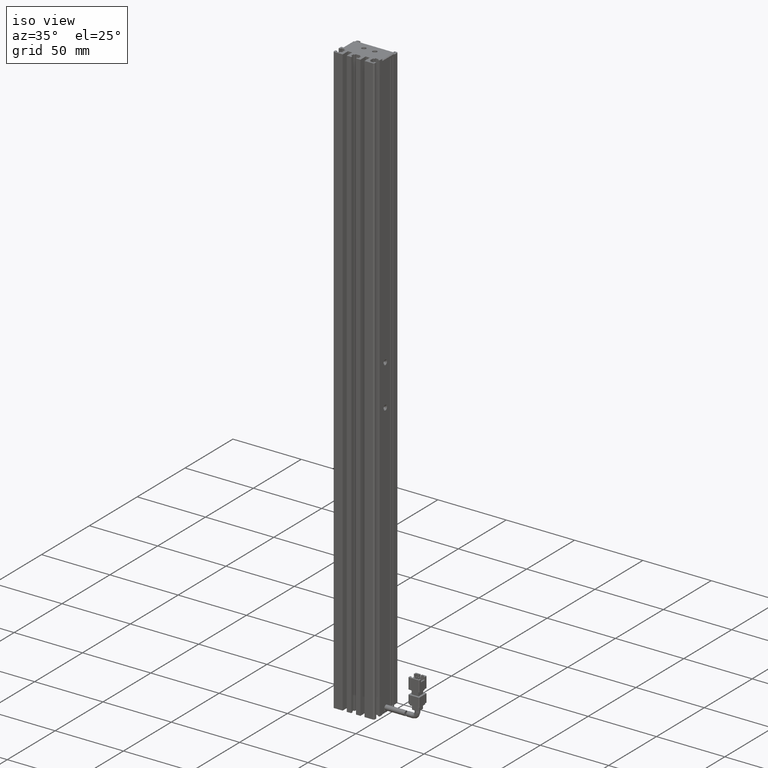
[diagram: clean part render]
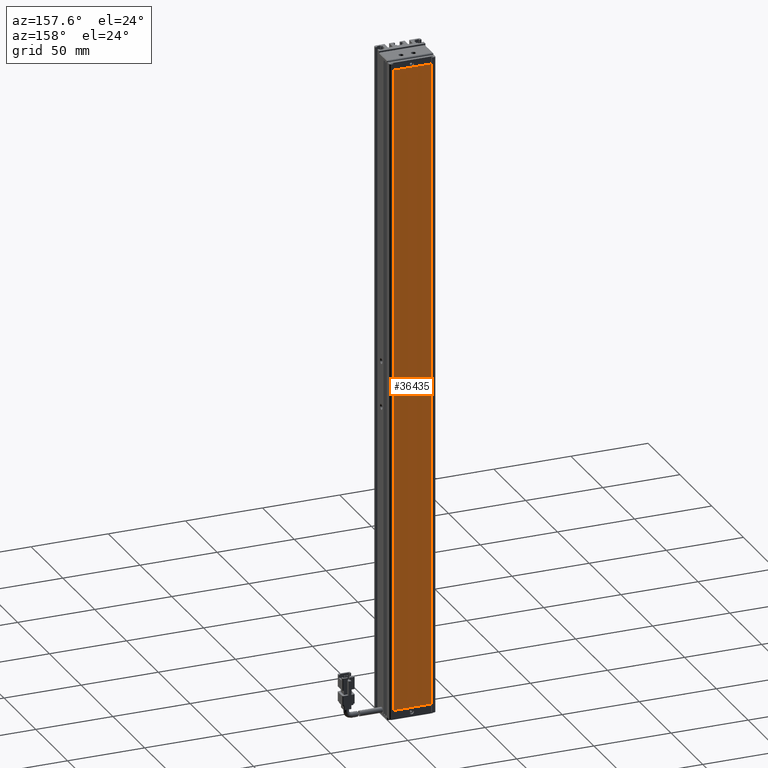
[diagram: tour spotlight — one face highlighted and labeled with its STEP entity id]
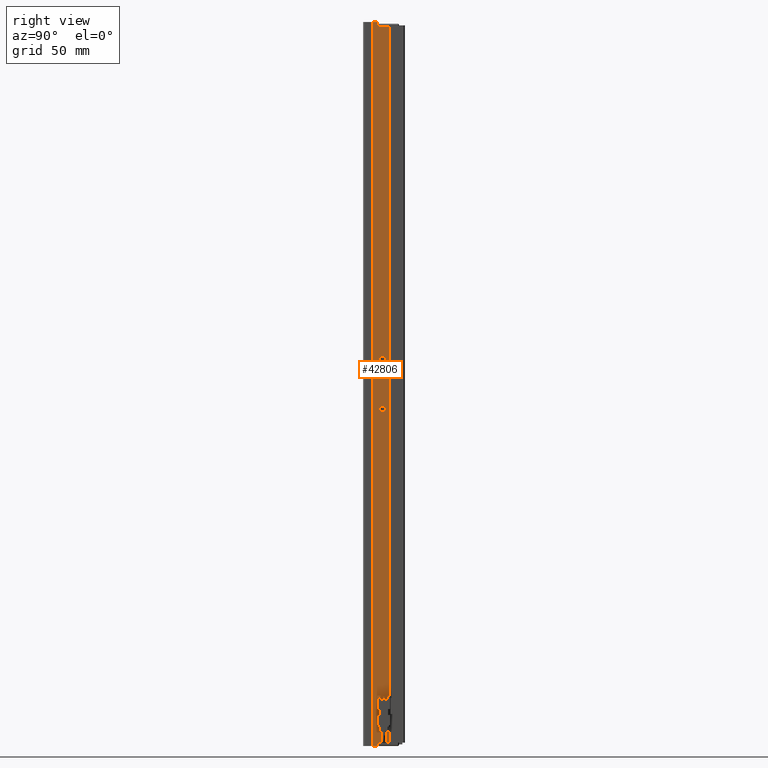
[diagram: tour spotlight — one face highlighted and labeled with its STEP entity id]
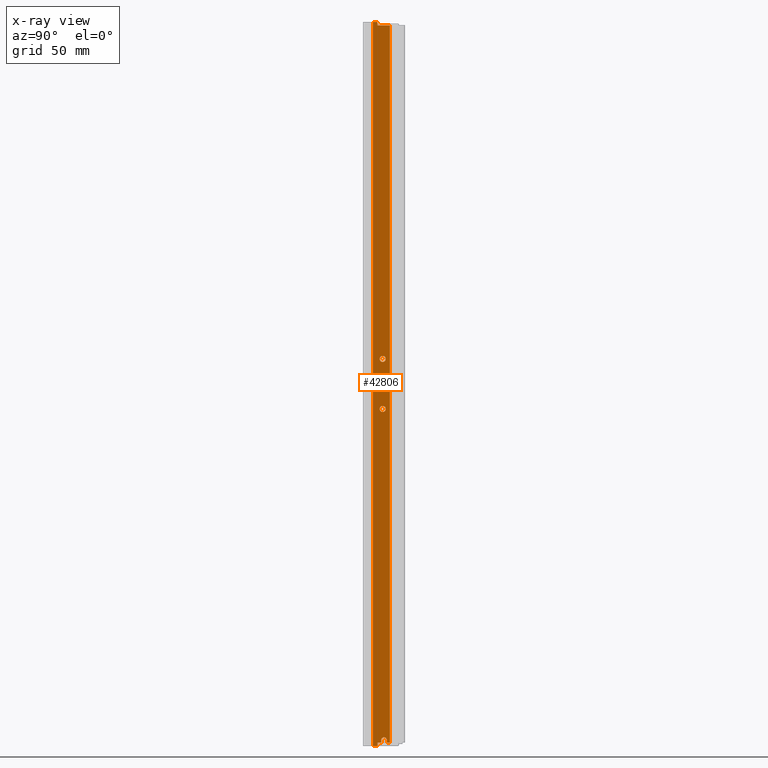
[diagram: x-ray of the same camera — body ghosted, this tour face saturated]
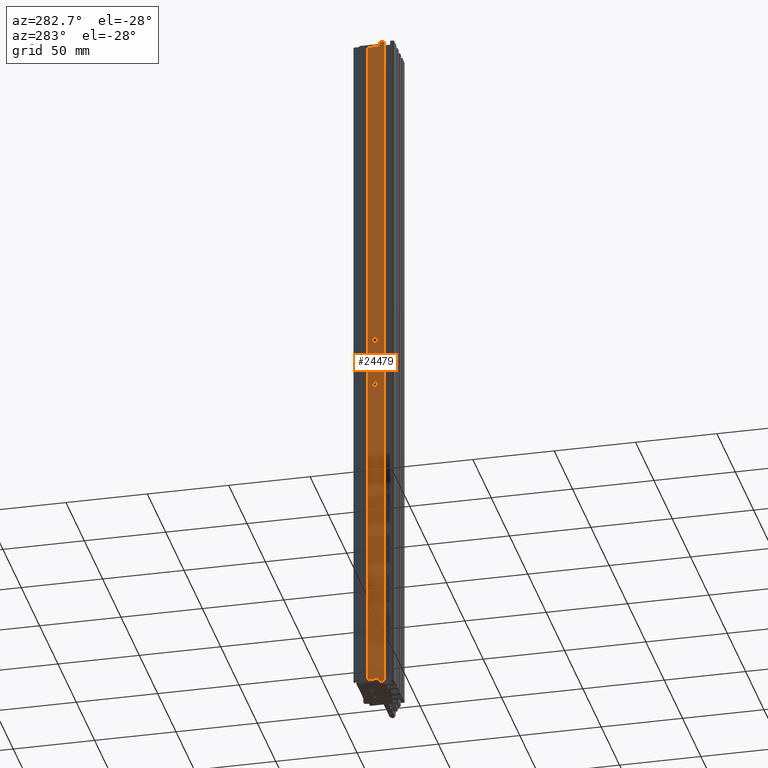
[diagram: tour spotlight — one face highlighted and labeled with its STEP entity id]
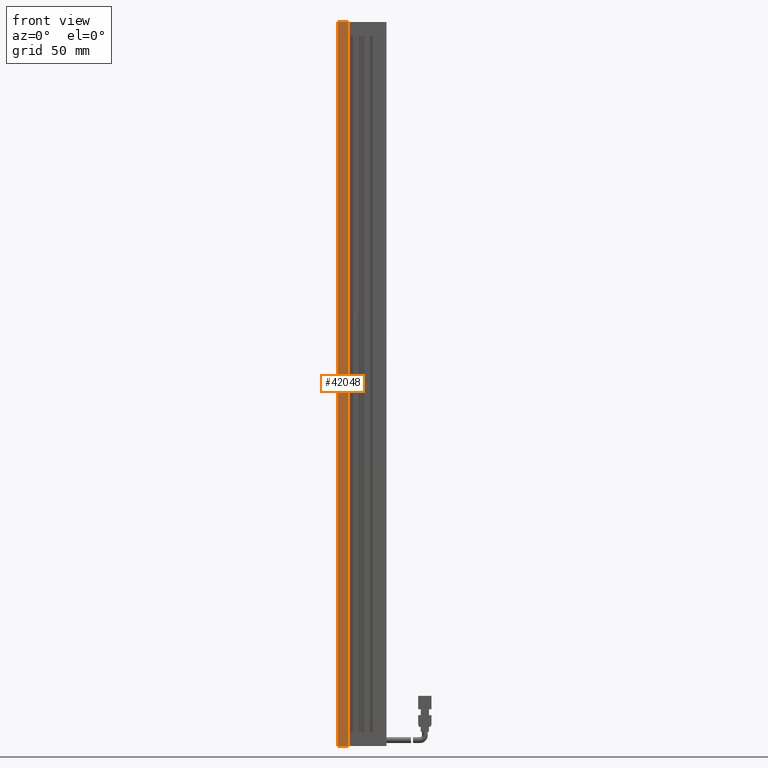
[diagram: tour spotlight — one face highlighted and labeled with its STEP entity id]
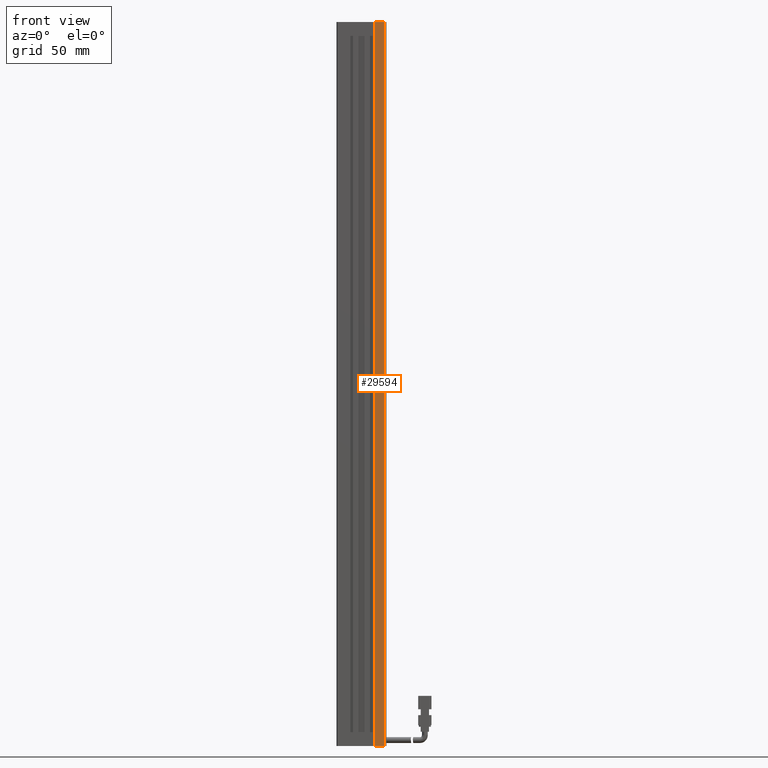
[diagram: tour spotlight — one face highlighted and labeled with its STEP entity id]
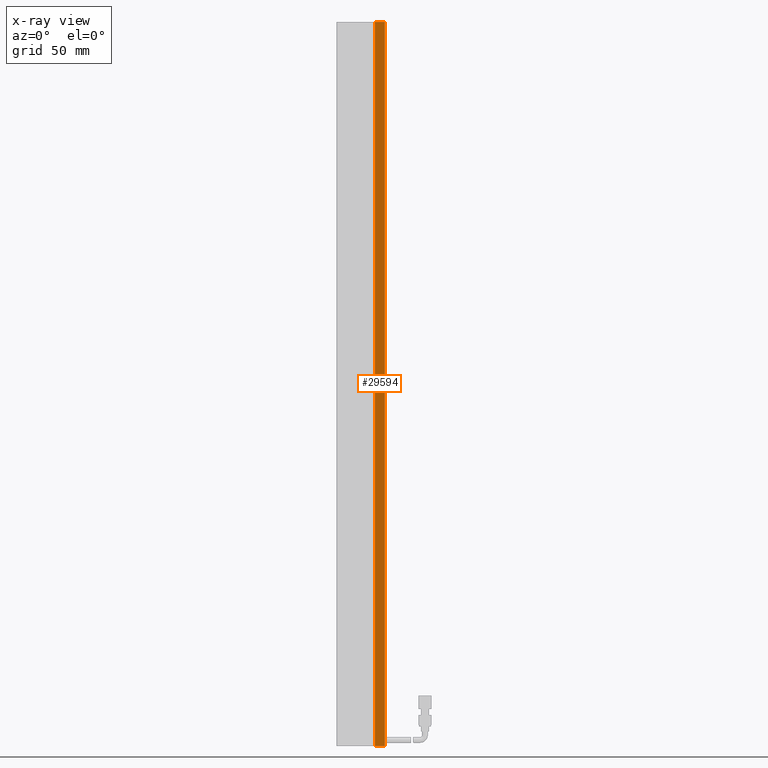
[diagram: x-ray of the same camera — body ghosted, this tour face saturated]
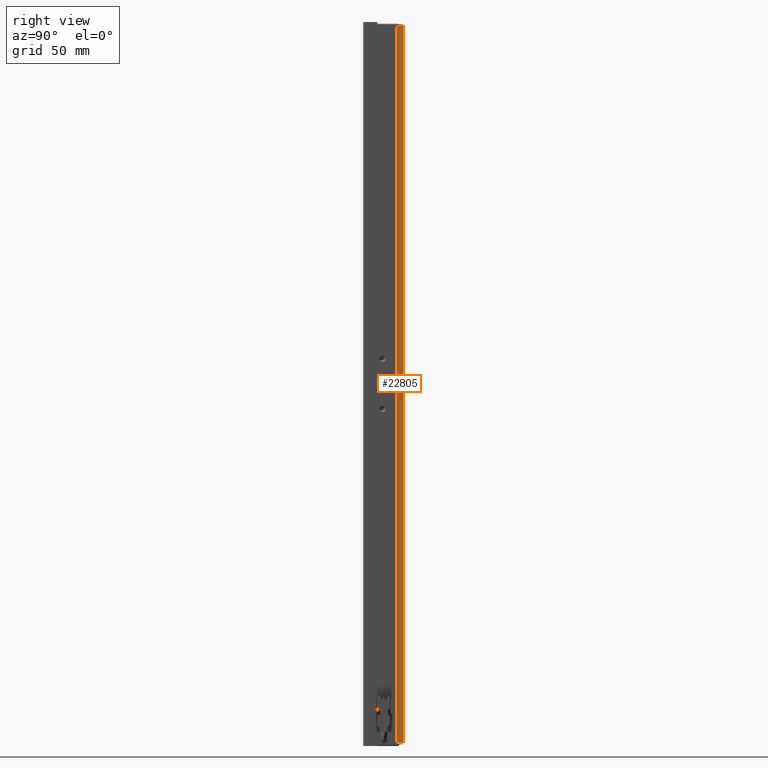
[diagram: tour spotlight — one face highlighted and labeled with its STEP entity id]
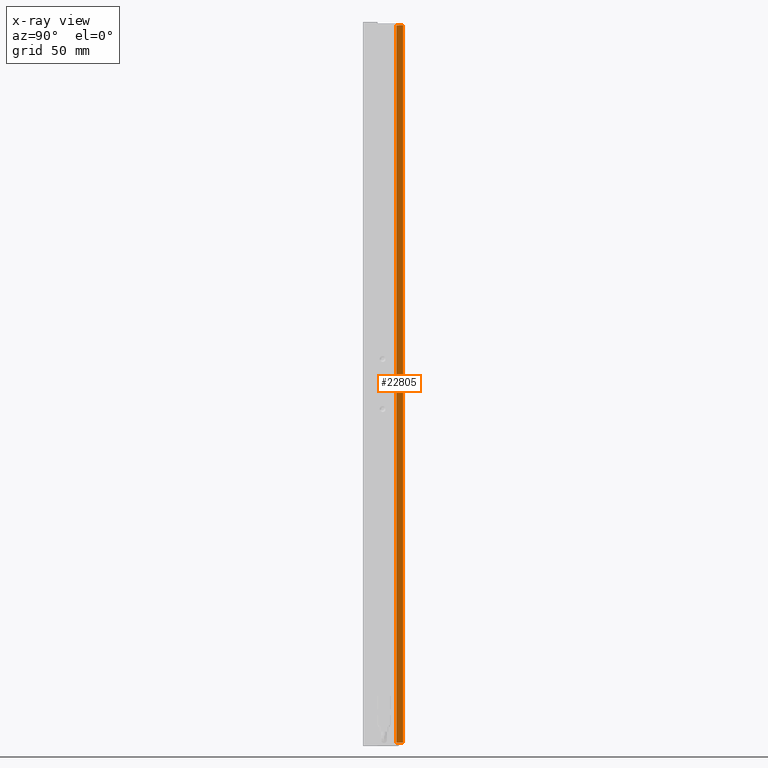
[diagram: x-ray of the same camera — body ghosted, this tour face saturated]
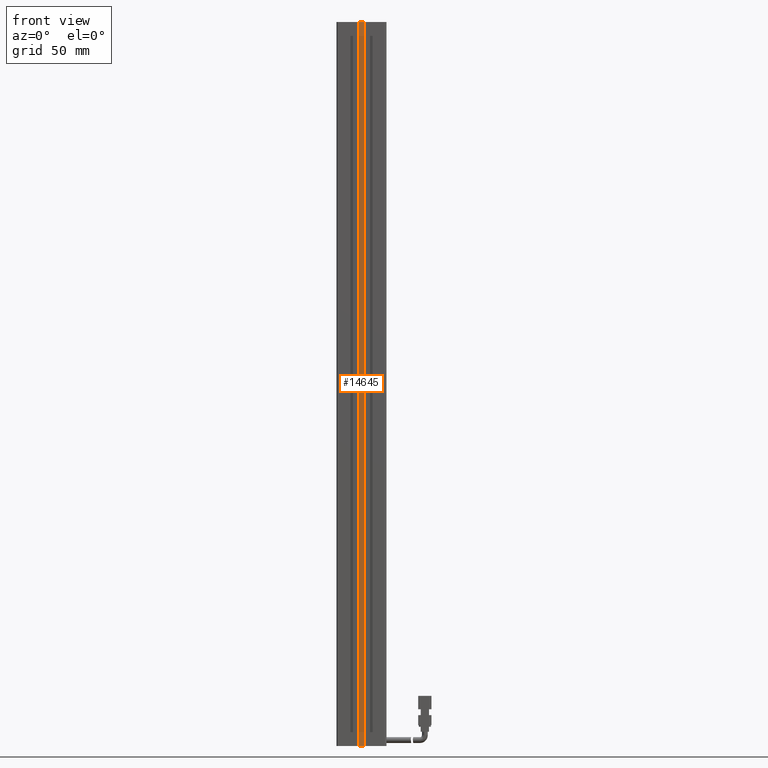
[diagram: tour spotlight — one face highlighted and labeled with its STEP entity id]
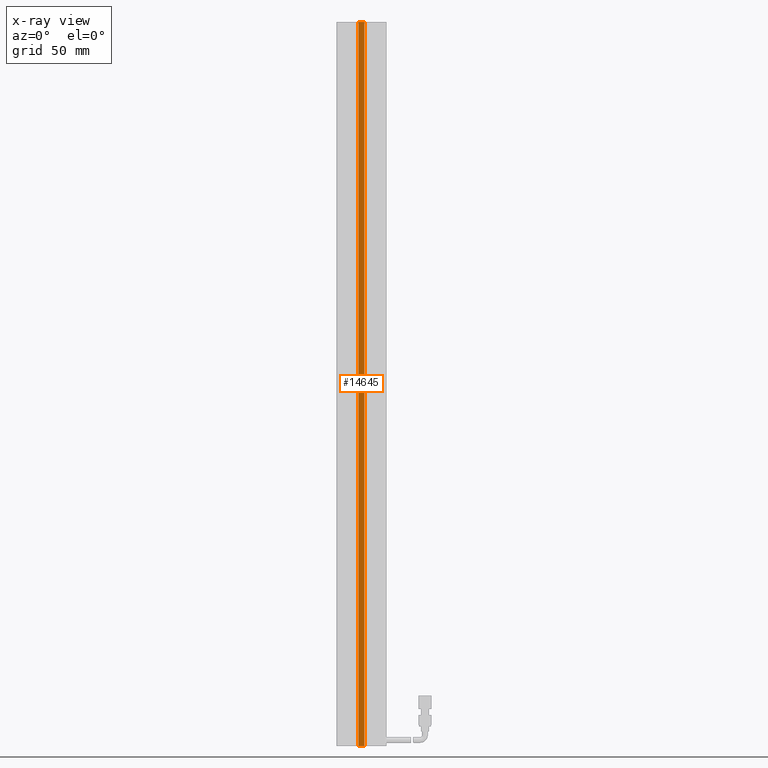
[diagram: x-ray of the same camera — body ghosted, this tour face saturated]
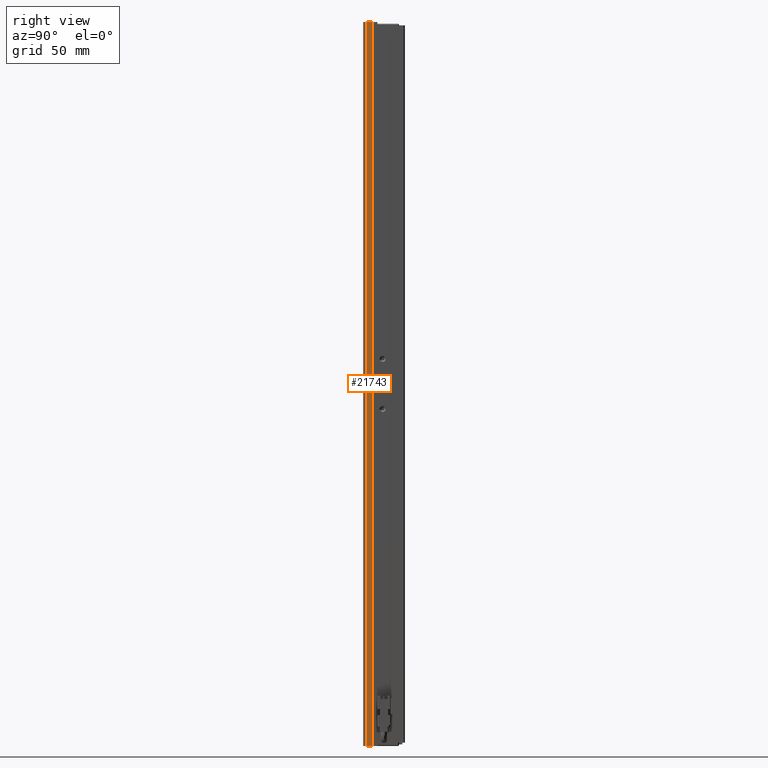
[diagram: tour spotlight — one face highlighted and labeled with its STEP entity id]
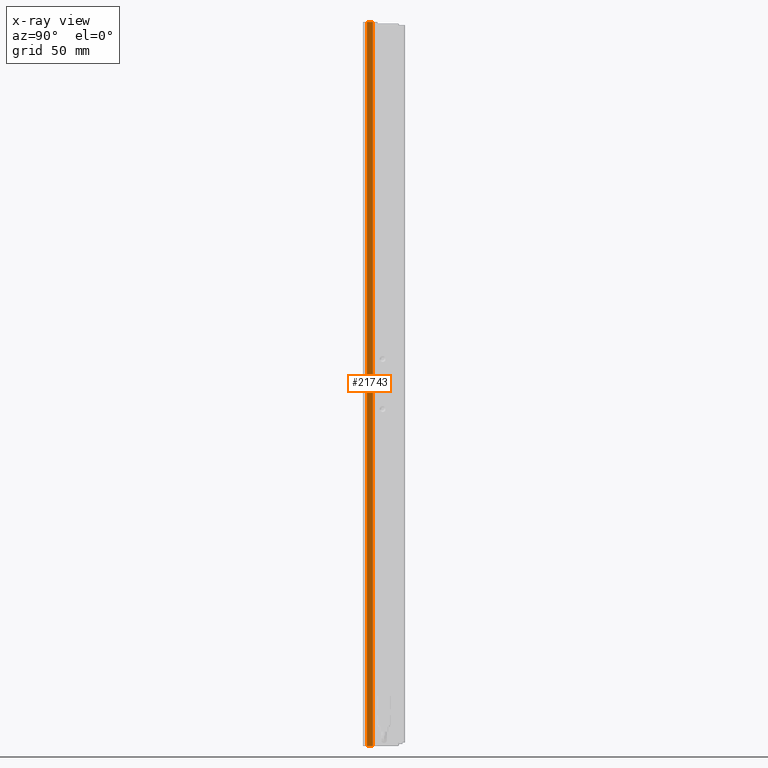
[diagram: x-ray of the same camera — body ghosted, this tour face saturated]
A machine part: a face-by-face anatomy tour. The part has 1842 B-rep faces; the first image is the clean iso view, then the 8 largest visible faces are spotlighted one at a time (largest first), each with its STEP entity span.

Face 1 — auxiliary view, entity #36435. In plain terms, the highlighted planar face has unit normal (0, 1, 0).
Definition (entity closure, byte-faithful):
#1334 = DIRECTION ( 'NONE',  ( 0.0000000000000000000, 0.0000000000000000000, -1.000000000000000000 ) ) ;
#1966 = CARTESIAN_POINT ( 'NONE',  ( 53.32537974683541600, 34.29594479660387000, 95.14999999999993500 ) ) ;
#3685 = CARTESIAN_POINT ( 'NONE',  ( 53.32537974683541600, 34.29594479660387000, -324.8500000000000800 ) ) ;
#6895 = VERTEX_POINT ( 'NONE', #1966 ) ;
#8287 = VECTOR ( 'NONE', #9965, 1000.000000000000000 ) ;
#8521 = ORIENTED_EDGE ( 'NONE', *, *, #11822, .T. ) ;
#9965 = DIRECTION ( 'NONE',  ( -1.000000000000000000, 0.0000000000000000000, 0.0000000000000000000 ) ) ;
#11822 = EDGE_CURVE ( 'NONE', #59364, #12262, #13813, .T. ) ;
#12262 = VERTEX_POINT ( 'NONE', #62233 ) ;
#13813 = LINE ( 'NONE', #57493, #77113 ) ;
#13820 = CARTESIAN_POINT ( 'NONE',  ( 53.32537974683541600, 34.29594479660387000, 95.14999999999993500 ) ) ;
#15264 = CARTESIAN_POINT ( 'NONE',  ( 28.52537974683541600, 34.29594479660387000, 95.14999999999993500 ) ) ;
#16603 = LINE ( 'NONE', #13820, #31085 ) ;
#17890 = CARTESIAN_POINT ( 'NONE',  ( 0.0000000000000000000, 34.29594479660387000, 0.0000000000000000000 ) ) ;
#18576 = ORIENTED_EDGE ( 'NONE', *, *, #33290, .T. ) ;
#19126 = AXIS2_PLACEMENT_3D ( 'NONE', #17890, #60782, #24099 ) ;
#21457 = DIRECTION ( 'NONE',  ( 1.000000000000000000, 0.0000000000000000000, 0.0000000000000000000 ) ) ;
#24099 = DIRECTION ( 'NONE',  ( 0.0000000000000000000, -0.0000000000000000000, 1.000000000000000000 ) ) ;
#31085 = VECTOR ( 'NONE', #1334, 1000.000000000000000 ) ;
#33290 = EDGE_CURVE ( 'NONE', #12262, #6895, #39902, .T. ) ;
#35962 = PLANE ( 'NONE',  #19126 ) ;
#36435 = ADVANCED_FACE ( 'NONE', ( #45366 ), #35962, .T. ) ;
#39902 = LINE ( 'NONE', #15264, #70495 ) ;
#43864 = ORIENTED_EDGE ( 'NONE', *, *, #52217, .T. ) ;
#45366 = FACE_OUTER_BOUND ( 'NONE', #66193, .T. ) ;
#48538 = EDGE_CURVE ( 'NONE', #6895, #77530, #16603, .T. ) ;
#52217 = EDGE_CURVE ( 'NONE', #77530, #59364, #57294, .T. ) ;
#55587 = ORIENTED_EDGE ( 'NONE', *, *, #48538, .T. ) ;
#57294 = LINE ( 'NONE', #3685, #8287 ) ;
#57493 = CARTESIAN_POINT ( 'NONE',  ( 28.52537974683541600, 34.29594479660387000, -324.8500000000000800 ) ) ;
#59364 = VERTEX_POINT ( 'NONE', #75776 ) ;
#60782 = DIRECTION ( 'NONE',  ( 0.0000000000000000000, 1.000000000000000000, 0.0000000000000000000 ) ) ;
#62233 = CARTESIAN_POINT ( 'NONE',  ( 28.52537974683541600, 34.29594479660387000, 95.14999999999993500 ) ) ;
#63655 = DIRECTION ( 'NONE',  ( 0.0000000000000000000, 0.0000000000000000000, 1.000000000000000000 ) ) ;
#66193 = EDGE_LOOP ( 'NONE', ( #55587, #43864, #8521, #18576 ) ) ;
#70495 = VECTOR ( 'NONE', #21457, 1000.000000000000000 ) ;
#75776 = CARTESIAN_POINT ( 'NONE',  ( 28.52537974683541600, 34.29594479660387000, -324.8500000000000800 ) ) ;
#77113 = VECTOR ( 'NONE', #63655, 1000.000000000000000 ) ;
#77530 = VERTEX_POINT ( 'NONE', #77672 ) ;
#77672 = CARTESIAN_POINT ( 'NONE',  ( 53.32537974683541600, 34.29594479660387000, -324.8500000000000800 ) ) ;

Face 2 — right view, entity #42806. An x-ray twin of the same camera follows (body ghosted, this face saturated) — the face is partly hidden behind the body. In plain terms, the highlighted planar face has unit normal (-1, 0, 0).
Definition (entity closure, byte-faithful):
#90 = EDGE_CURVE ( 'NONE', #48869, #3133, #79060, .T. ) ;
#1366 = CARTESIAN_POINT ( 'NONE',  ( 55.92537974683539700, 23.19594479660386500, -328.4499999999999900 ) ) ;
#2090 = DIRECTION ( 'NONE',  ( 0.0000000000000000000, 0.0000000000000000000, 1.000000000000000000 ) ) ;
#2236 = EDGE_CURVE ( 'NONE', #5185, #49014, #7779, .T. ) ;
#2620 = DIRECTION ( 'NONE',  ( 0.0000000000000000000, 0.0000000000000000000, -1.000000000000000000 ) ) ;
#2652 = ORIENTED_EDGE ( 'NONE', *, *, #36897, .T. ) ;
#2654 = DIRECTION ( 'NONE',  ( -0.0000000000000000000, 0.0000000000000000000, 1.000000000000000000 ) ) ;
#3133 = VERTEX_POINT ( 'NONE', #71822 ) ;
#3452 = CARTESIAN_POINT ( 'NONE',  ( 55.92537974687862600, 22.39594479660386700, -100.0000000000000000 ) ) ;
#3609 = DIRECTION ( 'NONE',  ( -0.0000000000000000000, -0.0000000000000000000, -1.000000000000000000 ) ) ;
#3752 = AXIS2_PLACEMENT_3D ( 'NONE', #48015, #11213, #54115 ) ;
#4087 = CARTESIAN_POINT ( 'NONE',  ( 55.92537974682178300, 22.39594479660386700, -130.0000000000000000 ) ) ;
#5185 = VERTEX_POINT ( 'NONE', #37644 ) ;
#6270 = VERTEX_POINT ( 'NONE', #50440 ) ;
#6363 = CARTESIAN_POINT ( 'NONE',  ( 55.92537974683541100, 7.083797468354417100, 99.99999999999998600 ) ) ;
#7633 = DIRECTION ( 'NONE',  ( 0.0000000000000000000, 1.000000000000000000, 0.0000000000000000000 ) ) ;
#7779 = LINE ( 'NONE', #58549, #71183 ) ;
#8554 = FACE_BOUND ( 'NONE', #60135, .T. ) ;
#9750 = DIRECTION ( 'NONE',  ( 0.0000000000000000000, 0.0000000000000000000, -1.000000000000000000 ) ) ;
#10352 = DIRECTION ( 'NONE',  ( 0.0000000000000000000, 0.0000000000000000000, -1.000000000000000000 ) ) ;
#11212 = VERTEX_POINT ( 'NONE', #19830 ) ;
#11213 = DIRECTION ( 'NONE',  ( 1.000000000000000000, 0.0000000000000000000, 0.0000000000000000000 ) ) ;
#12592 = DIRECTION ( 'NONE',  ( 1.394554826879015900E-015, 1.000000000000000000, -0.0000000000000000000 ) ) ;
#14553 = AXIS2_PLACEMENT_3D ( 'NONE', #3452, #46559, #9750 ) ;
#14603 = CARTESIAN_POINT ( 'NONE',  ( 55.92537974683540400, 21.54594479660386200, -330.0000000000000000 ) ) ;
#14604 = CARTESIAN_POINT ( 'NONE',  ( 55.92537974683543200, 19.19594479660386500, -330.0000000000000000 ) ) ;
#14678 = CARTESIAN_POINT ( 'NONE',  ( 55.92537974683542500, 16.49594479660387200, -332.0000000000000000 ) ) ;
#14760 = LINE ( 'NONE', #14603, #59838 ) ;
#14911 = CIRCLE ( 'NONE', #14553, 1.800000000073395800 ) ;
#14933 = LINE ( 'NONE', #6363, #45694 ) ;
#15131 = LINE ( 'NONE', #32933, #45894 ) ;
#15398 = EDGE_CURVE ( 'NONE', #41764, #41097, #52429, .T. ) ;
#15457 = DIRECTION ( 'NONE',  ( -1.000000000000000000, 1.394554826879015900E-015, 0.0000000000000000000 ) ) ;
#15616 = CARTESIAN_POINT ( 'NONE',  ( 55.92537974682178300, 22.39594479660386700, -128.2000000000107600 ) ) ;
#15834 = CARTESIAN_POINT ( 'NONE',  ( 55.92537974683543900, 26.69594479660386800, 102.0000000000000000 ) ) ;
#18155 = ORIENTED_EDGE ( 'NONE', *, *, #76256, .T. ) ;
#18650 = EDGE_CURVE ( 'NONE', #41097, #41764, #38193, .T. ) ;
#18820 = LINE ( 'NONE', #61055, #63880 ) ;
#18932 = CARTESIAN_POINT ( 'NONE',  ( 55.92537974683543200, 19.19594479660386500, 99.99999999999998600 ) ) ;
#19011 = EDGE_CURVE ( 'NONE', #53591, #55854, #14933, .T. ) ;
#19314 = EDGE_CURVE ( 'NONE', #56151, #38684, #18820, .T. ) ;
#19830 = CARTESIAN_POINT ( 'NONE',  ( 55.92537974683543200, 19.19594479660386500, -332.0000000000000000 ) ) ;
#20177 = VECTOR ( 'NONE', #65783, 1000.000000000000000 ) ;
#20442 = ORIENTED_EDGE ( 'NONE', *, *, #19314, .F. ) ;
#22152 = CARTESIAN_POINT ( 'NONE',  ( 55.92537974683539700, 24.84594479660386700, -328.4499999999999900 ) ) ;
#23166 = VECTOR ( 'NONE', #50554, 1000.000000000000000 ) ;
#24236 = DIRECTION ( 'NONE',  ( 0.0000000000000000000, 1.000000000000000000, -0.0000000000000000000 ) ) ;
#24335 = CARTESIAN_POINT ( 'NONE',  ( 55.92537974683542500, 7.083797468354437600, 102.0000000000000000 ) ) ;
#25210 = CARTESIAN_POINT ( 'NONE',  ( 55.92537974683541100, 24.84594479660386700, -330.0000000000000000 ) ) ;
#26431 = VECTOR ( 'NONE', #47891, 1000.000000000000000 ) ;
#26919 = CARTESIAN_POINT ( 'NONE',  ( 55.92537974683543900, 26.69594479660386800, 99.99999999999998600 ) ) ;
#26992 = ORIENTED_EDGE ( 'NONE', *, *, #73214, .F. ) ;
#27688 = VECTOR ( 'NONE', #3609, 1000.000000000000000 ) ;
#28094 = EDGE_CURVE ( 'NONE', #11212, #53185, #58966, .T. ) ;
#30508 = CIRCLE ( 'NONE', #3752, 1.800000000073395800 ) ;
#31605 = AXIS2_PLACEMENT_3D ( 'NONE', #1366, #44498, #7633 ) ;
#31901 = CARTESIAN_POINT ( 'NONE',  ( 55.92537974687862600, 22.39594479660386700, -101.8000000000734000 ) ) ;
#32195 = VECTOR ( 'NONE', #24236, 1000.000000000000000 ) ;
#32856 = CIRCLE ( 'NONE', #31605, 1.650000000000002100 ) ;
#32933 = CARTESIAN_POINT ( 'NONE',  ( 55.92537974683542500, 16.49594479660387200, 102.0000000000000000 ) ) ;
#34501 = ORIENTED_EDGE ( 'NONE', *, *, #61066, .T. ) ;
#36577 = LINE ( 'NONE', #77561, #20177 ) ;
#36897 = EDGE_CURVE ( 'NONE', #73244, #49014, #36577, .T. ) ;
#37644 = CARTESIAN_POINT ( 'NONE',  ( 55.92537974683543200, 26.69594479660386800, -330.0000000000000000 ) ) ;
#38193 = CIRCLE ( 'NONE', #41412, 1.799999999989254600 ) ;
#38627 = EDGE_CURVE ( 'NONE', #53185, #48869, #15131, .T. ) ;
#38684 = VERTEX_POINT ( 'NONE', #14604 ) ;
#39158 = CARTESIAN_POINT ( 'NONE',  ( 55.92537974682178300, 22.39594479660386700, -131.7999999999892700 ) ) ;
#39616 = DIRECTION ( 'NONE',  ( -1.394554826879015900E-015, -1.000000000000000000, 0.0000000000000000000 ) ) ;
#39617 = DIRECTION ( 'NONE',  ( 1.000000000000000000, 0.0000000000000000000, 0.0000000000000000000 ) ) ;
#40443 = ORIENTED_EDGE ( 'NONE', *, *, #59727, .T. ) ;
#41097 = VERTEX_POINT ( 'NONE', #39158 ) ;
#41194 = CARTESIAN_POINT ( 'NONE',  ( 55.92537974683543200, 19.19594479660386500, 102.0000000000000000 ) ) ;
#41311 = FACE_BOUND ( 'NONE', #47606, .T. ) ;
#41412 = AXIS2_PLACEMENT_3D ( 'NONE', #76204, #39617, #2620 ) ;
#41764 = VERTEX_POINT ( 'NONE', #15616 ) ;
#42806 = ADVANCED_FACE ( 'NONE', ( #8554, #75722, #41311 ), #51937, .F. ) ;
#43983 = LINE ( 'NONE', #15834, #27688 ) ;
#44498 = DIRECTION ( 'NONE',  ( 1.000000000000000000, 5.687617954022316600E-016, -0.0000000000000000000 ) ) ;
#45694 = VECTOR ( 'NONE', #12592, 1000.000000000000000 ) ;
#45894 = VECTOR ( 'NONE', #2090, 1000.000000000000000 ) ;
#46559 = DIRECTION ( 'NONE',  ( 1.000000000000000000, 0.0000000000000000000, 0.0000000000000000000 ) ) ;
#46630 = LINE ( 'NONE', #41194, #77241 ) ;
#47163 = DIRECTION ( 'NONE',  ( 1.000000000000000000, 0.0000000000000000000, 0.0000000000000000000 ) ) ;
#47360 = ORIENTED_EDGE ( 'NONE', *, *, #18650, .F. ) ;
#47606 = EDGE_LOOP ( 'NONE', ( #74290, #26992 ) ) ;
#47891 = DIRECTION ( 'NONE',  ( -1.394554826879015900E-015, -1.000000000000000000, 0.0000000000000000000 ) ) ;
#48015 = CARTESIAN_POINT ( 'NONE',  ( 55.92537974687862600, 22.39594479660386700, -100.0000000000000000 ) ) ;
#48869 = VERTEX_POINT ( 'NONE', #60569 ) ;
#49014 = VERTEX_POINT ( 'NONE', #25210 ) ;
#50440 = CARTESIAN_POINT ( 'NONE',  ( 55.92537974683539700, 21.54594479660386200, -328.4499999999999900 ) ) ;
#50523 = EDGE_LOOP ( 'NONE', ( #18155, #56252, #2652, #61711, #67507, #56434, #40443, #57830, #75358, #64247, #34501, #20442 ) ) ;
#50554 = DIRECTION ( 'NONE',  ( -0.0000000000000000000, 0.0000000000000000000, 1.000000000000000000 ) ) ;
#51937 = PLANE ( 'NONE',  #76373 ) ;
#52198 = CARTESIAN_POINT ( 'NONE',  ( 55.92537974683541100, 7.083797468354417100, 102.0000000000000000 ) ) ;
#52429 = CIRCLE ( 'NONE', #64136, 1.799999999989254600 ) ;
#53185 = VERTEX_POINT ( 'NONE', #14678 ) ;
#53591 = VERTEX_POINT ( 'NONE', #18932 ) ;
#54115 = DIRECTION ( 'NONE',  ( 0.0000000000000000000, 0.0000000000000000000, -1.000000000000000000 ) ) ;
#54224 = VERTEX_POINT ( 'NONE', #77183 ) ;
#55854 = VERTEX_POINT ( 'NONE', #26919 ) ;
#56151 = VERTEX_POINT ( 'NONE', #66989 ) ;
#56252 = ORIENTED_EDGE ( 'NONE', *, *, #57503, .F. ) ;
#56434 = ORIENTED_EDGE ( 'NONE', *, *, #19011, .F. ) ;
#57503 = EDGE_CURVE ( 'NONE', #73244, #6270, #32856, .T. ) ;
#57830 = ORIENTED_EDGE ( 'NONE', *, *, #90, .F. ) ;
#58382 = DIRECTION ( 'NONE',  ( -1.394554826879015900E-015, -1.000000000000000000, 0.0000000000000000000 ) ) ;
#58549 = CARTESIAN_POINT ( 'NONE',  ( 55.92537974683541100, 7.083797468354417100, -330.0000000000000000 ) ) ;
#58966 = LINE ( 'NONE', #60189, #26431 ) ;
#59031 = EDGE_CURVE ( 'NONE', #78072, #54224, #30508, .T. ) ;
#59727 = EDGE_CURVE ( 'NONE', #53591, #3133, #46630, .T. ) ;
#59838 = VECTOR ( 'NONE', #2654, 1000.000000000000000 ) ;
#59850 = DIRECTION ( 'NONE',  ( -0.0000000000000000000, 0.0000000000000000000, 1.000000000000000000 ) ) ;
#60135 = EDGE_LOOP ( 'NONE', ( #47360, #72460 ) ) ;
#60189 = CARTESIAN_POINT ( 'NONE',  ( 55.92537974683541100, 7.083797468354417100, -332.0000000000000000 ) ) ;
#60569 = CARTESIAN_POINT ( 'NONE',  ( 55.92537974683542500, 16.49594479660387200, 102.0000000000000000 ) ) ;
#61055 = CARTESIAN_POINT ( 'NONE',  ( 55.92537974683541100, 7.083797468354417100, -330.0000000000000000 ) ) ;
#61066 = EDGE_CURVE ( 'NONE', #11212, #38684, #72084, .T. ) ;
#61711 = ORIENTED_EDGE ( 'NONE', *, *, #2236, .F. ) ;
#61852 = EDGE_CURVE ( 'NONE', #55854, #5185, #43983, .T. ) ;
#63880 = VECTOR ( 'NONE', #73346, 1000.000000000000000 ) ;
#64136 = AXIS2_PLACEMENT_3D ( 'NONE', #4087, #47163, #10352 ) ;
#64247 = ORIENTED_EDGE ( 'NONE', *, *, #28094, .F. ) ;
#65783 = DIRECTION ( 'NONE',  ( -0.0000000000000000000, -0.0000000000000000000, -1.000000000000000000 ) ) ;
#66989 = CARTESIAN_POINT ( 'NONE',  ( 55.92537974683542500, 21.54594479660386200, -330.0000000000000000 ) ) ;
#67507 = ORIENTED_EDGE ( 'NONE', *, *, #61852, .F. ) ;
#71183 = VECTOR ( 'NONE', #39616, 1000.000000000000000 ) ;
#71822 = CARTESIAN_POINT ( 'NONE',  ( 55.92537974683543200, 19.19594479660386500, 102.0000000000000000 ) ) ;
#72084 = LINE ( 'NONE', #74655, #23166 ) ;
#72460 = ORIENTED_EDGE ( 'NONE', *, *, #15398, .F. ) ;
#73214 = EDGE_CURVE ( 'NONE', #54224, #78072, #14911, .T. ) ;
#73244 = VERTEX_POINT ( 'NONE', #22152 ) ;
#73346 = DIRECTION ( 'NONE',  ( -1.394554826879015900E-015, -1.000000000000000000, 0.0000000000000000000 ) ) ;
#74290 = ORIENTED_EDGE ( 'NONE', *, *, #59031, .F. ) ;
#74655 = CARTESIAN_POINT ( 'NONE',  ( 55.92537974683543200, 19.19594479660386500, 102.0000000000000000 ) ) ;
#75358 = ORIENTED_EDGE ( 'NONE', *, *, #38627, .F. ) ;
#75722 = FACE_OUTER_BOUND ( 'NONE', #50523, .T. ) ;
#76204 = CARTESIAN_POINT ( 'NONE',  ( 55.92537974682178300, 22.39594479660386700, -130.0000000000000000 ) ) ;
#76256 = EDGE_CURVE ( 'NONE', #56151, #6270, #14760, .T. ) ;
#76373 = AXIS2_PLACEMENT_3D ( 'NONE', #52198, #15457, #58382 ) ;
#77183 = CARTESIAN_POINT ( 'NONE',  ( 55.92537974687862600, 22.39594479660386700, -98.19999999992660400 ) ) ;
#77241 = VECTOR ( 'NONE', #59850, 1000.000000000000000 ) ;
#77561 = CARTESIAN_POINT ( 'NONE',  ( 55.92537974683539700, 24.84594479660386700, -330.0000000000000000 ) ) ;
#78072 = VERTEX_POINT ( 'NONE', #31901 ) ;
#79060 = LINE ( 'NONE', #24335, #32195 ) ;

Face 3 — auxiliary view, entity #24479. In plain terms, the highlighted planar face has unit normal (-1, 0, 0).
Definition (entity closure, byte-faithful):
#414 = CARTESIAN_POINT ( 'NONE',  ( 25.92537974684906700, 22.39594479660386700, -100.0000000000000000 ) ) ;
#1401 = EDGE_LOOP ( 'NONE', ( #54817, #67388 ) ) ;
#1575 = CARTESIAN_POINT ( 'NONE',  ( 25.92537974683541800, 16.49594479660387200, 102.0000000000000000 ) ) ;
#2313 = EDGE_CURVE ( 'NONE', #61237, #5954, #36737, .T. ) ;
#2324 = VECTOR ( 'NONE', #52024, 1000.000000000000000 ) ;
#3092 = CARTESIAN_POINT ( 'NONE',  ( 25.92537974683541800, 26.69594479660386800, -330.0000000000000000 ) ) ;
#4531 = LINE ( 'NONE', #1575, #35461 ) ;
#5954 = VERTEX_POINT ( 'NONE', #70134 ) ;
#6643 = DIRECTION ( 'NONE',  ( 0.0000000000000000000, 0.0000000000000000000, 1.000000000000000000 ) ) ;
#6773 = CARTESIAN_POINT ( 'NONE',  ( 25.92537974683541800, 19.19594479660386500, 102.0000000000000000 ) ) ;
#7772 = VECTOR ( 'NONE', #16480, 1000.000000000000000 ) ;
#7888 = VERTEX_POINT ( 'NONE', #29495 ) ;
#8674 = CARTESIAN_POINT ( 'NONE',  ( 25.92537974684906700, 22.39594479660386700, -100.0000000000000000 ) ) ;
#9707 = CARTESIAN_POINT ( 'NONE',  ( 25.92537974683542100, 35.69594479660387500, 99.99999999999998600 ) ) ;
#9714 = CARTESIAN_POINT ( 'NONE',  ( 25.92537974683541800, 7.083797468354437600, -330.0000000000000000 ) ) ;
#11148 = EDGE_LOOP ( 'NONE', ( #38102, #32959 ) ) ;
#11433 = CIRCLE ( 'NONE', #62771, 1.799999999989268400 ) ;
#11858 = AXIS2_PLACEMENT_3D ( 'NONE', #61749, #25087, #67923 ) ;
#12688 = CARTESIAN_POINT ( 'NONE',  ( 25.92537974683541800, 16.49594479660387200, 102.0000000000000000 ) ) ;
#14895 = DIRECTION ( 'NONE',  ( 0.0000000000000000000, 0.0000000000000000000, 1.000000000000000000 ) ) ;
#16480 = DIRECTION ( 'NONE',  ( 0.0000000000000000000, 1.000000000000000000, -0.0000000000000000000 ) ) ;
#17600 = CARTESIAN_POINT ( 'NONE',  ( 25.92537974679222400, 22.39594479660386700, -128.1999999999266000 ) ) ;
#18486 = VERTEX_POINT ( 'NONE', #12688 ) ;
#20563 = CARTESIAN_POINT ( 'NONE',  ( 25.92537974683541800, 16.49594479660387200, -332.0000000000000000 ) ) ;
#21862 = DIRECTION ( 'NONE',  ( -0.0000000000000000000, -1.000000000000000000, 0.0000000000000000000 ) ) ;
#23664 = EDGE_CURVE ( 'NONE', #5954, #65530, #29888, .T. ) ;
#23695 = DIRECTION ( 'NONE',  ( -1.000000000000000000, 0.0000000000000000000, 0.0000000000000000000 ) ) ;
#23903 = ORIENTED_EDGE ( 'NONE', *, *, #55316, .T. ) ;
#24210 = CARTESIAN_POINT ( 'NONE',  ( 25.92537974683541800, 7.083797468354437600, -332.0000000000000000 ) ) ;
#24479 = ADVANCED_FACE ( 'NONE', ( #73548, #24708, #55322 ), #29638, .T. ) ;
#24708 = FACE_BOUND ( 'NONE', #1401, .T. ) ;
#25042 = ORIENTED_EDGE ( 'NONE', *, *, #55882, .T. ) ;
#25087 = DIRECTION ( 'NONE',  ( 1.000000000000000000, -0.0000000000000000000, -0.0000000000000000000 ) ) ;
#25299 = LINE ( 'NONE', #6773, #55902 ) ;
#25691 = ORIENTED_EDGE ( 'NONE', *, *, #2313, .T. ) ;
#25934 = EDGE_CURVE ( 'NONE', #18486, #7888, #40569, .T. ) ;
#27318 = CARTESIAN_POINT ( 'NONE',  ( 25.92537974679222400, 22.39594479660386700, -131.8000000000734200 ) ) ;
#27526 = ORIENTED_EDGE ( 'NONE', *, *, #23664, .T. ) ;
#28826 = VERTEX_POINT ( 'NONE', #62483 ) ;
#28921 = VERTEX_POINT ( 'NONE', #75326 ) ;
#29495 = CARTESIAN_POINT ( 'NONE',  ( 25.92537974683541800, 19.19594479660386500, 102.0000000000000000 ) ) ;
#29638 = PLANE ( 'NONE',  #48229 ) ;
#29888 = LINE ( 'NONE', #50329, #76769 ) ;
#31581 = ORIENTED_EDGE ( 'NONE', *, *, #40085, .T. ) ;
#31870 = EDGE_CURVE ( 'NONE', #28921, #38110, #11433, .T. ) ;
#32959 = ORIENTED_EDGE ( 'NONE', *, *, #70729, .T. ) ;
#33454 = DIRECTION ( 'NONE',  ( 0.0000000000000000000, 1.000000000000000000, 0.0000000000000000000 ) ) ;
#33898 = EDGE_CURVE ( 'NONE', #38110, #28921, #62433, .T. ) ;
#35226 = LINE ( 'NONE', #45914, #2324 ) ;
#35461 = VECTOR ( 'NONE', #75187, 1000.000000000000000 ) ;
#36471 = CARTESIAN_POINT ( 'NONE',  ( 25.92537974679222400, 22.39594479660386700, -130.0000000000000000 ) ) ;
#36737 = LINE ( 'NONE', #9707, #67316 ) ;
#37384 = AXIS2_PLACEMENT_3D ( 'NONE', #8674, #51644, #14895 ) ;
#37563 = CIRCLE ( 'NONE', #11858, 1.800000000073409500 ) ;
#38102 = ORIENTED_EDGE ( 'NONE', *, *, #40691, .T. ) ;
#38110 = VERTEX_POINT ( 'NONE', #77122 ) ;
#38289 = VECTOR ( 'NONE', #21862, 1000.000000000000000 ) ;
#39336 = EDGE_CURVE ( 'NONE', #46832, #74704, #59073, .T. ) ;
#40085 = EDGE_CURVE ( 'NONE', #7888, #61237, #25299, .T. ) ;
#40218 = LINE ( 'NONE', #9714, #38289 ) ;
#40562 = ORIENTED_EDGE ( 'NONE', *, *, #25934, .T. ) ;
#40569 = LINE ( 'NONE', #52958, #7772 ) ;
#40691 = EDGE_CURVE ( 'NONE', #53447, #74759, #37563, .T. ) ;
#42594 = DIRECTION ( 'NONE',  ( 0.0000000000000000000, 0.0000000000000000000, 1.000000000000000000 ) ) ;
#43555 = DIRECTION ( 'NONE',  ( 1.000000000000000000, -0.0000000000000000000, -0.0000000000000000000 ) ) ;
#45914 = CARTESIAN_POINT ( 'NONE',  ( 25.92537974683542100, 19.19594479660386500, 102.0000000000000000 ) ) ;
#46832 = VERTEX_POINT ( 'NONE', #48216 ) ;
#47057 = EDGE_CURVE ( 'NONE', #74704, #18486, #4531, .T. ) ;
#48216 = CARTESIAN_POINT ( 'NONE',  ( 25.92537974683541800, 19.19594479660386500, -332.0000000000000000 ) ) ;
#48229 = AXIS2_PLACEMENT_3D ( 'NONE', #60382, #23695, #66539 ) ;
#50329 = CARTESIAN_POINT ( 'NONE',  ( 25.92537974683541800, 26.69594479660386800, 102.0000000000000000 ) ) ;
#51644 = DIRECTION ( 'NONE',  ( 1.000000000000000000, -0.0000000000000000000, -0.0000000000000000000 ) ) ;
#52024 = DIRECTION ( 'NONE',  ( 0.0000000000000000000, -0.0000000000000000000, -1.000000000000000000 ) ) ;
#52958 = CARTESIAN_POINT ( 'NONE',  ( 25.92537974683541800, 7.083797468354437600, 102.0000000000000000 ) ) ;
#53447 = VERTEX_POINT ( 'NONE', #17600 ) ;
#54677 = ORIENTED_EDGE ( 'NONE', *, *, #47057, .T. ) ;
#54817 = ORIENTED_EDGE ( 'NONE', *, *, #33898, .T. ) ;
#55316 = EDGE_CURVE ( 'NONE', #65530, #28826, #40218, .T. ) ;
#55322 = FACE_BOUND ( 'NONE', #11148, .T. ) ;
#55882 = EDGE_CURVE ( 'NONE', #28826, #46832, #35226, .T. ) ;
#55902 = VECTOR ( 'NONE', #55920, 1000.000000000000000 ) ;
#55920 = DIRECTION ( 'NONE',  ( 0.0000000000000000000, -0.0000000000000000000, -1.000000000000000000 ) ) ;
#56486 = DIRECTION ( 'NONE',  ( -0.0000000000000000000, -0.0000000000000000000, -1.000000000000000000 ) ) ;
#58027 = CARTESIAN_POINT ( 'NONE',  ( 25.92537974683541800, 19.19594479660386500, 99.99999999999998600 ) ) ;
#58214 = EDGE_LOOP ( 'NONE', ( #40562, #31581, #25691, #27526, #23903, #25042, #61989, #54677 ) ) ;
#59073 = LINE ( 'NONE', #24210, #75355 ) ;
#60382 = CARTESIAN_POINT ( 'NONE',  ( 25.92537974683541800, 7.083797468354437600, 102.0000000000000000 ) ) ;
#61237 = VERTEX_POINT ( 'NONE', #58027 ) ;
#61644 = CIRCLE ( 'NONE', #62593, 1.800000000073409500 ) ;
#61749 = CARTESIAN_POINT ( 'NONE',  ( 25.92537974679222400, 22.39594479660386700, -130.0000000000000000 ) ) ;
#61989 = ORIENTED_EDGE ( 'NONE', *, *, #39336, .T. ) ;
#62433 = CIRCLE ( 'NONE', #37384, 1.799999999989268400 ) ;
#62483 = CARTESIAN_POINT ( 'NONE',  ( 25.92537974683541800, 19.19594479660386500, -330.0000000000000000 ) ) ;
#62593 = AXIS2_PLACEMENT_3D ( 'NONE', #36471, #79186, #42594 ) ;
#62771 = AXIS2_PLACEMENT_3D ( 'NONE', #414, #43555, #6643 ) ;
#65530 = VERTEX_POINT ( 'NONE', #3092 ) ;
#66539 = DIRECTION ( 'NONE',  ( 0.0000000000000000000, 0.0000000000000000000, 1.000000000000000000 ) ) ;
#67316 = VECTOR ( 'NONE', #33454, 1000.000000000000000 ) ;
#67388 = ORIENTED_EDGE ( 'NONE', *, *, #31870, .T. ) ;
#67923 = DIRECTION ( 'NONE',  ( 0.0000000000000000000, 0.0000000000000000000, 1.000000000000000000 ) ) ;
#70134 = CARTESIAN_POINT ( 'NONE',  ( 25.92537974683541800, 26.69594479660386800, 99.99999999999998600 ) ) ;
#70729 = EDGE_CURVE ( 'NONE', #74759, #53447, #61644, .T. ) ;
#73202 = DIRECTION ( 'NONE',  ( -0.0000000000000000000, -1.000000000000000000, 0.0000000000000000000 ) ) ;
#73548 = FACE_OUTER_BOUND ( 'NONE', #58214, .T. ) ;
#74704 = VERTEX_POINT ( 'NONE', #20563 ) ;
#74759 = VERTEX_POINT ( 'NONE', #27318 ) ;
#75187 = DIRECTION ( 'NONE',  ( 0.0000000000000000000, 0.0000000000000000000, 1.000000000000000000 ) ) ;
#75326 = CARTESIAN_POINT ( 'NONE',  ( 25.92537974684906700, 22.39594479660386700, -101.7999999999892700 ) ) ;
#75355 = VECTOR ( 'NONE', #73202, 1000.000000000000000 ) ;
#76769 = VECTOR ( 'NONE', #56486, 1000.000000000000000 ) ;
#77122 = CARTESIAN_POINT ( 'NONE',  ( 25.92537974684906700, 22.39594479660386700, -98.20000000001073200 ) ) ;
#79186 = DIRECTION ( 'NONE',  ( 1.000000000000000000, -0.0000000000000000000, -0.0000000000000000000 ) ) ;

Face 4 — front view, entity #42048. In plain terms, the highlighted planar face has unit normal (0, -1, 0).
Definition (entity closure, byte-faithful):
#2887 = FACE_OUTER_BOUND ( 'NONE', #12025, .T. ) ;
#3225 = LINE ( 'NONE', #55368, #34174 ) ;
#3398 = ORIENTED_EDGE ( 'NONE', *, *, #50461, .T. ) ;
#6403 = VECTOR ( 'NONE', #30355, 1000.000000000000000 ) ;
#10655 = EDGE_CURVE ( 'NONE', #40056, #59723, #61226, .T. ) ;
#11650 = EDGE_CURVE ( 'NONE', #64508, #59723, #3225, .T. ) ;
#12025 = EDGE_LOOP ( 'NONE', ( #70436, #3398, #72302, #41773 ) ) ;
#13542 = CARTESIAN_POINT ( 'NONE',  ( 32.92537974683543200, 10.69594479660386800, -332.0000000000000000 ) ) ;
#14160 = AXIS2_PLACEMENT_3D ( 'NONE', #62221, #25590, #68398 ) ;
#14413 = LINE ( 'NONE', #52247, #61440 ) ;
#16891 = CARTESIAN_POINT ( 'NONE',  ( 26.92537974683542100, 10.69594479660386800, 102.0000000000000000 ) ) ;
#17469 = LINE ( 'NONE', #16891, #48177 ) ;
#18412 = DIRECTION ( 'NONE',  ( 0.0000000000000000000, 0.0000000000000000000, 1.000000000000000000 ) ) ;
#21724 = DIRECTION ( 'NONE',  ( 1.000000000000000000, 0.0000000000000000000, 0.0000000000000000000 ) ) ;
#24150 = CARTESIAN_POINT ( 'NONE',  ( 40.92537974683542500, 10.69594479660386800, 102.0000000000000000 ) ) ;
#25590 = DIRECTION ( 'NONE',  ( 0.0000000000000000000, -1.000000000000000000, 0.0000000000000000000 ) ) ;
#30355 = DIRECTION ( 'NONE',  ( 1.000000000000000000, 0.0000000000000000000, 0.0000000000000000000 ) ) ;
#34174 = VECTOR ( 'NONE', #18412, 1000.000000000000000 ) ;
#40056 = VERTEX_POINT ( 'NONE', #43411 ) ;
#41773 = ORIENTED_EDGE ( 'NONE', *, *, #11650, .T. ) ;
#42048 = ADVANCED_FACE ( 'NONE', ( #2887 ), #61971, .T. ) ;
#43411 = CARTESIAN_POINT ( 'NONE',  ( 26.92537974683542100, 10.69594479660386800, 102.0000000000000000 ) ) ;
#46580 = EDGE_CURVE ( 'NONE', #79444, #64508, #14413, .T. ) ;
#48177 = VECTOR ( 'NONE', #59766, 1000.000000000000000 ) ;
#50461 = EDGE_CURVE ( 'NONE', #40056, #79444, #17469, .T. ) ;
#52247 = CARTESIAN_POINT ( 'NONE',  ( 40.92537974683542500, 10.69594479660386800, -332.0000000000000000 ) ) ;
#53672 = CARTESIAN_POINT ( 'NONE',  ( 32.92537974683543200, 10.69594479660386800, 102.0000000000000000 ) ) ;
#55368 = CARTESIAN_POINT ( 'NONE',  ( 32.92537974683543200, 10.69594479660386800, 102.0000000000000000 ) ) ;
#59723 = VERTEX_POINT ( 'NONE', #53672 ) ;
#59766 = DIRECTION ( 'NONE',  ( 0.0000000000000000000, -0.0000000000000000000, -1.000000000000000000 ) ) ;
#61226 = LINE ( 'NONE', #24150, #6403 ) ;
#61440 = VECTOR ( 'NONE', #21724, 1000.000000000000000 ) ;
#61971 = PLANE ( 'NONE',  #14160 ) ;
#62221 = CARTESIAN_POINT ( 'NONE',  ( 40.92537974683542500, 10.69594479660386800, 102.0000000000000000 ) ) ;
#64508 = VERTEX_POINT ( 'NONE', #13542 ) ;
#65336 = CARTESIAN_POINT ( 'NONE',  ( 26.92537974683542100, 10.69594479660386800, -332.0000000000000000 ) ) ;
#68398 = DIRECTION ( 'NONE',  ( 0.0000000000000000000, -0.0000000000000000000, -1.000000000000000000 ) ) ;
#70436 = ORIENTED_EDGE ( 'NONE', *, *, #10655, .F. ) ;
#72302 = ORIENTED_EDGE ( 'NONE', *, *, #46580, .T. ) ;
#79444 = VERTEX_POINT ( 'NONE', #65336 ) ;

Face 5 — front view, entity #29594. An x-ray twin of the same camera follows (body ghosted, this face saturated) — the face is partly hidden behind the body. In plain terms, the highlighted planar face has unit normal (0, 1, -0).
Definition (entity closure, byte-faithful):
#644 = CARTESIAN_POINT ( 'NONE',  ( 40.92537974683542500, 10.69594479660387000, 102.0000000000000000 ) ) ;
#1758 = CARTESIAN_POINT ( 'NONE',  ( 48.92537974683541800, 10.69594479660387000, -332.0000000000000000 ) ) ;
#3598 = CARTESIAN_POINT ( 'NONE',  ( 54.92537974683542500, 10.69594479660386800, 102.0000000000000000 ) ) ;
#4976 = VERTEX_POINT ( 'NONE', #49362 ) ;
#5591 = VECTOR ( 'NONE', #71642, 1000.000000000000000 ) ;
#5708 = EDGE_CURVE ( 'NONE', #25446, #42282, #72679, .T. ) ;
#7473 = ORIENTED_EDGE ( 'NONE', *, *, #5708, .F. ) ;
#10863 = VECTOR ( 'NONE', #33078, 1000.000000000000000 ) ;
#14755 = CARTESIAN_POINT ( 'NONE',  ( 48.92537974683541800, 10.69594479660387000, 102.0000000000000000 ) ) ;
#17652 = CARTESIAN_POINT ( 'NONE',  ( 48.92537974683541800, 10.69594479660387000, 102.0000000000000000 ) ) ;
#18077 = VECTOR ( 'NONE', #55398, 1000.000000000000000 ) ;
#20007 = LINE ( 'NONE', #55647, #18077 ) ;
#21384 = CARTESIAN_POINT ( 'NONE',  ( 40.92537974683542500, 10.69594479660387300, 102.0000000000000000 ) ) ;
#25116 = AXIS2_PLACEMENT_3D ( 'NONE', #21384, #64268, #27615 ) ;
#25446 = VERTEX_POINT ( 'NONE', #17652 ) ;
#26310 = VERTEX_POINT ( 'NONE', #1758 ) ;
#26576 = EDGE_CURVE ( 'NONE', #42282, #4976, #54615, .T. ) ;
#27615 = DIRECTION ( 'NONE',  ( -1.000000000000000000, 3.614007241618344800E-016, 0.0000000000000000000 ) ) ;
#28805 = CARTESIAN_POINT ( 'NONE',  ( 54.92537974683542500, 10.69594479660386800, 102.0000000000000000 ) ) ;
#29594 = ADVANCED_FACE ( 'NONE', ( #67640 ), #63717, .F. ) ;
#33078 = DIRECTION ( 'NONE',  ( 0.0000000000000000000, 0.0000000000000000000, 1.000000000000000000 ) ) ;
#38456 = EDGE_CURVE ( 'NONE', #26310, #4976, #20007, .T. ) ;
#42282 = VERTEX_POINT ( 'NONE', #3598 ) ;
#48630 = EDGE_LOOP ( 'NONE', ( #49617, #7473, #56395, #65780 ) ) ;
#49362 = CARTESIAN_POINT ( 'NONE',  ( 54.92537974683542500, 10.69594479660386800, -332.0000000000000000 ) ) ;
#49617 = ORIENTED_EDGE ( 'NONE', *, *, #26576, .F. ) ;
#54615 = LINE ( 'NONE', #28805, #5591 ) ;
#54793 = LINE ( 'NONE', #14755, #10863 ) ;
#55398 = DIRECTION ( 'NONE',  ( 1.000000000000000000, 0.0000000000000000000, 0.0000000000000000000 ) ) ;
#55647 = CARTESIAN_POINT ( 'NONE',  ( 40.92537974683542500, 10.69594479660387000, -332.0000000000000000 ) ) ;
#56361 = VECTOR ( 'NONE', #68279, 1000.000000000000000 ) ;
#56395 = ORIENTED_EDGE ( 'NONE', *, *, #57044, .F. ) ;
#57044 = EDGE_CURVE ( 'NONE', #26310, #25446, #54793, .T. ) ;
#63717 = PLANE ( 'NONE',  #25116 ) ;
#64268 = DIRECTION ( 'NONE',  ( 3.614007241618344800E-016, 1.000000000000000000, -0.0000000000000000000 ) ) ;
#65780 = ORIENTED_EDGE ( 'NONE', *, *, #38456, .T. ) ;
#67640 = FACE_OUTER_BOUND ( 'NONE', #48630, .T. ) ;
#68279 = DIRECTION ( 'NONE',  ( 1.000000000000000000, 0.0000000000000000000, 0.0000000000000000000 ) ) ;
#71642 = DIRECTION ( 'NONE',  ( -0.0000000000000000000, -0.0000000000000000000, -1.000000000000000000 ) ) ;
#72679 = LINE ( 'NONE', #644, #56361 ) ;

Face 6 — right view, entity #22805. An x-ray twin of the same camera follows (body ghosted, this face saturated) — the face is partly hidden behind the body. In plain terms, the highlighted planar face has unit normal (-1, 0, 0).
Definition (entity closure, byte-faithful):
#601 = LINE ( 'NONE', #8582, #33520 ) ;
#2583 = CARTESIAN_POINT ( 'NONE',  ( 55.92537974683542500, 34.69594479660387500, -330.0000000000000000 ) ) ;
#6039 = LINE ( 'NONE', #49326, #67551 ) ;
#8582 = CARTESIAN_POINT ( 'NONE',  ( 55.92537974683542500, 30.69594479660386800, 102.0000000000000000 ) ) ;
#13731 = ORIENTED_EDGE ( 'NONE', *, *, #37642, .F. ) ;
#13760 = FACE_OUTER_BOUND ( 'NONE', #76201, .T. ) ;
#16613 = EDGE_CURVE ( 'NONE', #26380, #25333, #44500, .T. ) ;
#16957 = PLANE ( 'NONE',  #41971 ) ;
#22805 = ADVANCED_FACE ( 'NONE', ( #13760 ), #16957, .F. ) ;
#25333 = VERTEX_POINT ( 'NONE', #46939 ) ;
#26380 = VERTEX_POINT ( 'NONE', #2583 ) ;
#32447 = CARTESIAN_POINT ( 'NONE',  ( 55.92537974683542500, 30.69594479660386800, 99.99999999999998600 ) ) ;
#33110 = DIRECTION ( 'NONE',  ( -0.0000000000000000000, -1.000000000000000000, -0.0000000000000000000 ) ) ;
#33520 = VECTOR ( 'NONE', #51289, 1000.000000000000000 ) ;
#35806 = ORIENTED_EDGE ( 'NONE', *, *, #67837, .T. ) ;
#35811 = CARTESIAN_POINT ( 'NONE',  ( 55.92537974683542500, 7.083797468354437600, 102.0000000000000000 ) ) ;
#37642 = EDGE_CURVE ( 'NONE', #42245, #26380, #6039, .T. ) ;
#40203 = VECTOR ( 'NONE', #33110, 1000.000000000000000 ) ;
#40904 = DIRECTION ( 'NONE',  ( -0.0000000000000000000, -1.000000000000000000, -0.0000000000000000000 ) ) ;
#41971 = AXIS2_PLACEMENT_3D ( 'NONE', #35811, #78546, #41973 ) ;
#41973 = DIRECTION ( 'NONE',  ( 0.0000000000000000000, 0.0000000000000000000, 1.000000000000000000 ) ) ;
#42245 = VERTEX_POINT ( 'NONE', #58471 ) ;
#44500 = LINE ( 'NONE', #47272, #77026 ) ;
#46939 = CARTESIAN_POINT ( 'NONE',  ( 55.92537974683542500, 30.69594479660386800, -330.0000000000000000 ) ) ;
#47272 = CARTESIAN_POINT ( 'NONE',  ( 55.92537974683542500, 35.69594479660387500, -330.0000000000000000 ) ) ;
#49144 = VERTEX_POINT ( 'NONE', #32447 ) ;
#49326 = CARTESIAN_POINT ( 'NONE',  ( 55.92537974683542500, 34.69594479660387500, 102.0000000000000000 ) ) ;
#51289 = DIRECTION ( 'NONE',  ( 0.0000000000000000000, 0.0000000000000000000, 1.000000000000000000 ) ) ;
#56406 = LINE ( 'NONE', #57684, #40203 ) ;
#57684 = CARTESIAN_POINT ( 'NONE',  ( 55.92537974683542500, 35.69594479660387500, 99.99999999999998600 ) ) ;
#58471 = CARTESIAN_POINT ( 'NONE',  ( 55.92537974683542500, 34.69594479660387500, 99.99999999999998600 ) ) ;
#59643 = ORIENTED_EDGE ( 'NONE', *, *, #67005, .F. ) ;
#66533 = ORIENTED_EDGE ( 'NONE', *, *, #16613, .F. ) ;
#67005 = EDGE_CURVE ( 'NONE', #25333, #49144, #601, .T. ) ;
#67551 = VECTOR ( 'NONE', #73954, 1000.000000000000000 ) ;
#67837 = EDGE_CURVE ( 'NONE', #42245, #49144, #56406, .T. ) ;
#73954 = DIRECTION ( 'NONE',  ( -0.0000000000000000000, -0.0000000000000000000, -1.000000000000000000 ) ) ;
#76201 = EDGE_LOOP ( 'NONE', ( #35806, #59643, #66533, #13731 ) ) ;
#77026 = VECTOR ( 'NONE', #40904, 1000.000000000000000 ) ;
#78546 = DIRECTION ( 'NONE',  ( -1.000000000000000000, 0.0000000000000000000, 0.0000000000000000000 ) ) ;

Face 7 — front view, entity #14645. An x-ray twin of the same camera follows (body ghosted, this face saturated) — the face is partly hidden behind the body. In plain terms, the highlighted planar face has unit normal (0, 1, 0).
Definition (entity closure, byte-faithful):
#1767 = FACE_OUTER_BOUND ( 'NONE', #61027, .T. ) ;
#2955 = DIRECTION ( 'NONE',  ( 0.0000000000000000000, -0.0000000000000000000, 1.000000000000000000 ) ) ;
#3766 = DIRECTION ( 'NONE',  ( 1.000000000000000000, 0.0000000000000000000, 0.0000000000000000000 ) ) ;
#6087 = VECTOR ( 'NONE', #18731, 1000.000000000000000 ) ;
#6254 = CARTESIAN_POINT ( 'NONE',  ( 39.17537974683542500, 15.49594479660386700, 102.0000000000000000 ) ) ;
#8765 = EDGE_CURVE ( 'NONE', #33882, #14202, #60064, .T. ) ;
#8970 = PLANE ( 'NONE',  #13587 ) ;
#13587 = AXIS2_PLACEMENT_3D ( 'NONE', #76543, #39956, #2955 ) ;
#14202 = VERTEX_POINT ( 'NONE', #23052 ) ;
#14645 = ADVANCED_FACE ( 'NONE', ( #1767 ), #8970, .F. ) ;
#14716 = EDGE_CURVE ( 'NONE', #71331, #47964, #77788, .T. ) ;
#15706 = EDGE_CURVE ( 'NONE', #14202, #47964, #62880, .T. ) ;
#18731 = DIRECTION ( 'NONE',  ( 0.0000000000000000000, -0.0000000000000000000, 1.000000000000000000 ) ) ;
#23052 = CARTESIAN_POINT ( 'NONE',  ( 42.67537974683542500, 15.49594479660386700, 102.0000000000000000 ) ) ;
#25172 = CARTESIAN_POINT ( 'NONE',  ( 42.67537974683542500, 15.49594479660386700, 102.0000000000000000 ) ) ;
#33882 = VERTEX_POINT ( 'NONE', #63174 ) ;
#34944 = ORIENTED_EDGE ( 'NONE', *, *, #35462, .F. ) ;
#35462 = EDGE_CURVE ( 'NONE', #71331, #33882, #71465, .T. ) ;
#39956 = DIRECTION ( 'NONE',  ( 0.0000000000000000000, 1.000000000000000000, 0.0000000000000000000 ) ) ;
#40508 = ORIENTED_EDGE ( 'NONE', *, *, #15706, .F. ) ;
#41992 = CARTESIAN_POINT ( 'NONE',  ( 39.17537974683542500, 15.49594479660386700, -332.0000000000000000 ) ) ;
#45697 = ORIENTED_EDGE ( 'NONE', *, *, #14716, .T. ) ;
#47964 = VERTEX_POINT ( 'NONE', #72932 ) ;
#58146 = VECTOR ( 'NONE', #76909, 1000.000000000000000 ) ;
#58268 = ORIENTED_EDGE ( 'NONE', *, *, #8765, .F. ) ;
#58468 = CARTESIAN_POINT ( 'NONE',  ( 40.92537974683542500, 15.49594479660386700, 102.0000000000000000 ) ) ;
#60064 = LINE ( 'NONE', #58468, #58146 ) ;
#61027 = EDGE_LOOP ( 'NONE', ( #40508, #58268, #34944, #45697 ) ) ;
#61527 = VECTOR ( 'NONE', #3766, 1000.000000000000000 ) ;
#62880 = LINE ( 'NONE', #25172, #77239 ) ;
#63174 = CARTESIAN_POINT ( 'NONE',  ( 39.17537974683542500, 15.49594479660386700, 102.0000000000000000 ) ) ;
#71331 = VERTEX_POINT ( 'NONE', #41992 ) ;
#71465 = LINE ( 'NONE', #6254, #6087 ) ;
#72932 = CARTESIAN_POINT ( 'NONE',  ( 42.67537974683542500, 15.49594479660386700, -332.0000000000000000 ) ) ;
#74128 = DIRECTION ( 'NONE',  ( -0.0000000000000000000, 0.0000000000000000000, -1.000000000000000000 ) ) ;
#76543 = CARTESIAN_POINT ( 'NONE',  ( 40.92537974683542500, 15.49594479660386700, 102.0000000000000000 ) ) ;
#76909 = DIRECTION ( 'NONE',  ( 1.000000000000000000, 0.0000000000000000000, 0.0000000000000000000 ) ) ;
#77239 = VECTOR ( 'NONE', #74128, 1000.000000000000000 ) ;
#77342 = CARTESIAN_POINT ( 'NONE',  ( 40.92537974683542500, 15.49594479660386700, -332.0000000000000000 ) ) ;
#77788 = LINE ( 'NONE', #77342, #61527 ) ;

Face 8 — right view, entity #21743. An x-ray twin of the same camera follows (body ghosted, this face saturated) — the face is partly hidden behind the body. In plain terms, the highlighted planar face has unit normal (1, 0, -0).
Definition (entity closure, byte-faithful):
#770 = EDGE_CURVE ( 'NONE', #28110, #5827, #38754, .T. ) ;
#961 = PLANE ( 'NONE',  #55538 ) ;
#2139 = CARTESIAN_POINT ( 'NONE',  ( 51.12537974683541400, 12.99594479660387100, 102.0000000000000000 ) ) ;
#3868 = DIRECTION ( 'NONE',  ( -0.0000000000000000000, 0.0000000000000000000, -1.000000000000000000 ) ) ;
#5827 = VERTEX_POINT ( 'NONE', #7059 ) ;
#7059 = CARTESIAN_POINT ( 'NONE',  ( 51.12537974683541400, 12.99594479660386900, -332.0000000000000000 ) ) ;
#8878 = EDGE_CURVE ( 'NONE', #28110, #31727, #17928, .T. ) ;
#11078 = CARTESIAN_POINT ( 'NONE',  ( 51.12537974683541400, 12.99594479660386900, 102.0000000000000000 ) ) ;
#16007 = VECTOR ( 'NONE', #41355, 1000.000000000000000 ) ;
#17172 = DIRECTION ( 'NONE',  ( 0.0000000000000000000, -0.0000000000000000000, 1.000000000000000000 ) ) ;
#17928 = LINE ( 'NONE', #72111, #16007 ) ;
#19817 = LINE ( 'NONE', #42630, #50502 ) ;
#21743 = ADVANCED_FACE ( 'NONE', ( #21813 ), #961, .T. ) ;
#21813 = FACE_OUTER_BOUND ( 'NONE', #63007, .T. ) ;
#22653 = ORIENTED_EDGE ( 'NONE', *, *, #770, .T. ) ;
#22806 = LINE ( 'NONE', #53841, #55367 ) ;
#27259 = EDGE_CURVE ( 'NONE', #5827, #34832, #19817, .T. ) ;
#28110 = VERTEX_POINT ( 'NONE', #11078 ) ;
#31727 = VERTEX_POINT ( 'NONE', #60418 ) ;
#32075 = CARTESIAN_POINT ( 'NONE',  ( 51.12537974683541400, 7.083797468354437600, 102.0000000000000000 ) ) ;
#34832 = VERTEX_POINT ( 'NONE', #47497 ) ;
#38244 = DIRECTION ( 'NONE',  ( -0.0000000000000000000, 0.0000000000000000000, -1.000000000000000000 ) ) ;
#38754 = LINE ( 'NONE', #2139, #53038 ) ;
#41355 = DIRECTION ( 'NONE',  ( 0.0000000000000000000, 1.000000000000000000, -0.0000000000000000000 ) ) ;
#42630 = CARTESIAN_POINT ( 'NONE',  ( 51.12537974683541400, 7.083797468354437600, -332.0000000000000000 ) ) ;
#47497 = CARTESIAN_POINT ( 'NONE',  ( 51.12537974683541400, 16.49594479660387200, -332.0000000000000000 ) ) ;
#48735 = DIRECTION ( 'NONE',  ( 0.0000000000000000000, 1.000000000000000000, -0.0000000000000000000 ) ) ;
#48899 = ORIENTED_EDGE ( 'NONE', *, *, #27259, .T. ) ;
#50502 = VECTOR ( 'NONE', #48735, 1000.000000000000000 ) ;
#52101 = ORIENTED_EDGE ( 'NONE', *, *, #61953, .T. ) ;
#53038 = VECTOR ( 'NONE', #3868, 1000.000000000000000 ) ;
#53841 = CARTESIAN_POINT ( 'NONE',  ( 51.12537974683541400, 16.49594479660387200, 102.0000000000000000 ) ) ;
#55367 = VECTOR ( 'NONE', #17172, 1000.000000000000000 ) ;
#55538 = AXIS2_PLACEMENT_3D ( 'NONE', #32075, #74843, #38244 ) ;
#59088 = ORIENTED_EDGE ( 'NONE', *, *, #8878, .F. ) ;
#60418 = CARTESIAN_POINT ( 'NONE',  ( 51.12537974683541400, 16.49594479660387200, 102.0000000000000000 ) ) ;
#61953 = EDGE_CURVE ( 'NONE', #34832, #31727, #22806, .T. ) ;
#63007 = EDGE_LOOP ( 'NONE', ( #59088, #22653, #48899, #52101 ) ) ;
#72111 = CARTESIAN_POINT ( 'NONE',  ( 51.12537974683541400, 7.083797468354437600, 102.0000000000000000 ) ) ;
#74843 = DIRECTION ( 'NONE',  ( 1.000000000000000000, 0.0000000000000000000, -0.0000000000000000000 ) ) ;